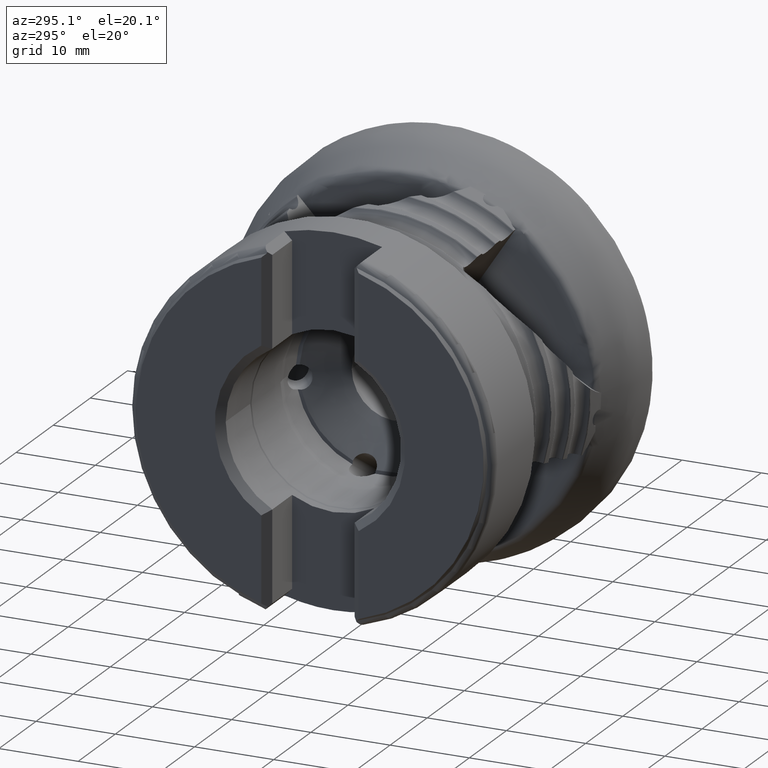
[diagram: clean part render]
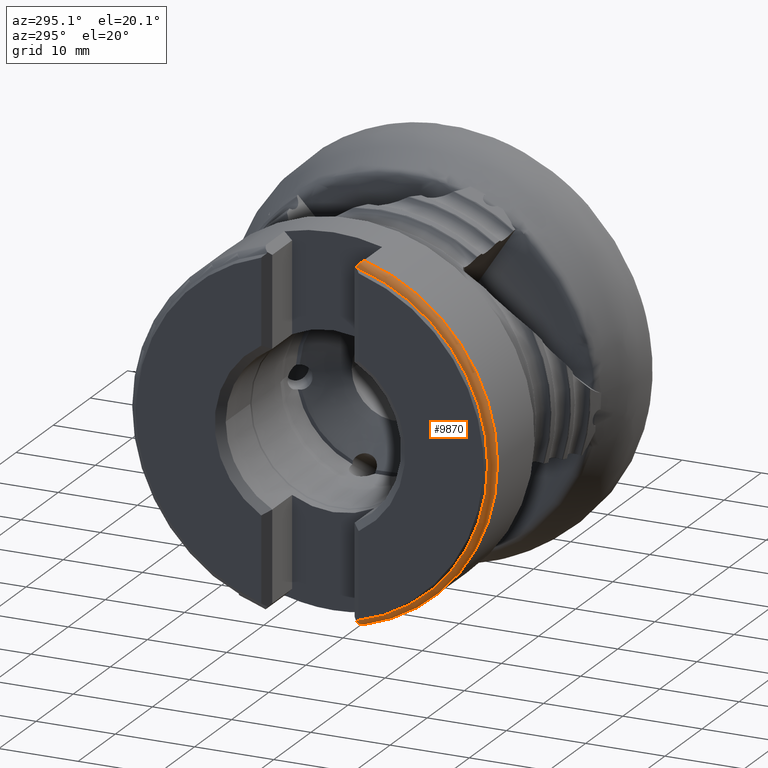
[diagram: same view with one face highlighted and labeled with its STEP entity id]
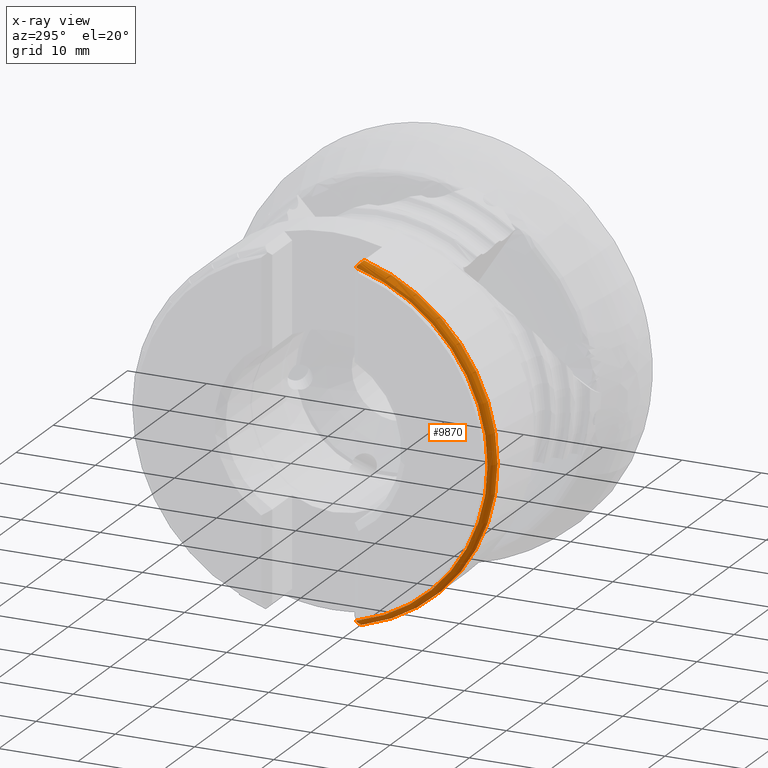
[diagram: x-ray of the same camera — body ghosted, the highlighted face saturated]
A machine part, auxiliary view. The second image highlights one B-rep face of the part: STEP entity #9870.
The next image is the same camera in x-ray: the body ghosted, the highlighted face saturated — about 0% of this face is hidden behind the body in this view.
In plain terms, the highlighted toroidal blend (fillet) surface has major radius 22 mm and minor (blend) radius 1 mm.
Its self-contained STEP definition (entity closure, byte-faithful):
#301 = B_SPLINE_CURVE_WITH_KNOTS ( 'NONE', 3,
 ( #4166, #8471, #9567, #3133 ),
 .UNSPECIFIED., .F., .F.,
 ( 4, 4 ),
 ( 0.0009211484419128416000, 0.001104207427129013900 ),
 .UNSPECIFIED. ) ;
#545 = CARTESIAN_POINT ( 'NONE',  ( -37.66899409298618200, -6.142094694713156500, -22.14643901774246300 ) ) ;
#1049 = ORIENTED_EDGE ( 'NONE', *, *, #2073, .T. ) ;
#1176 = CARTESIAN_POINT ( 'NONE',  ( -38.43402115014630000, -5.678761973106852600, 21.46657139491063000 ) ) ;
#1279 = EDGE_CURVE ( 'NONE', #4947, #4784, #6888, .T. ) ;
#1445 = CARTESIAN_POINT ( 'NONE',  ( -38.35459836637036800, -5.704844070720222100, -21.71020682124892100 ) ) ;
#1587 = CARTESIAN_POINT ( 'NONE',  ( -37.45525917703945900, -6.156428778033644600, -22.16073971466202900 ) ) ;
#1788 = B_SPLINE_CURVE_WITH_KNOTS ( 'NONE', 3,
 ( #4734, #1445, #3684, #12201, #5771, #13238, #6860, #545, #7967, #1587 ),
 .UNSPECIFIED., .F., .F.,
 ( 4, 2, 2, 2, 4 ),
 ( 0.0000000000000000000, 0.0003164729145763503000, 0.0006329458291527005900, 0.0009494187437290508300, 0.001265891658305401200 ),
 .UNSPECIFIED. ) ;
#1978 = EDGE_CURVE ( 'NONE', #4947, #8374, #12658, .T. ) ;
#2073 = EDGE_CURVE ( 'NONE', #2716, #12027, #1788, .T. ) ;
#2275 = DIRECTION ( 'NONE',  ( 1.000000000000000000, -0.0000000000000000000, -0.0000000000000000000 ) ) ;
#2450 = DIRECTION ( 'NONE',  ( 1.000000000000000000, -0.0000000000000000000, -0.0000000000000000000 ) ) ;
#2716 = VERTEX_POINT ( 'NONE', #9715 ) ;
#2814 = CARTESIAN_POINT ( 'NONE',  ( -37.45525917703945900, -6.156428778033639300, 22.16073971466202900 ) ) ;
#2859 = CARTESIAN_POINT ( 'NONE',  ( -37.45525917703945900, -6.156428778033644600, -22.16073971466202900 ) ) ;
#2954 = CARTESIAN_POINT ( 'NONE',  ( -37.87577205521033400, -6.099115118286075400, 22.10355954770779300 ) ) ;
#3133 = CARTESIAN_POINT ( 'NONE',  ( -38.43402115014630000, -5.678761973106852600, -21.46657139491063000 ) ) ;
#3642 = CARTESIAN_POINT ( 'NONE',  ( -38.43402115014630000, -5.678761973106852600, -21.46657139491063000 ) ) ;
#3684 = CARTESIAN_POINT ( 'NONE',  ( -38.30906014108899200, -5.772261426444524400, -21.77746715103613100 ) ) ;
#4044 = CARTESIAN_POINT ( 'NONE',  ( -38.32099110899952200, -5.776438155613816700, 21.78163415192691600 ) ) ;
#4166 = CARTESIAN_POINT ( 'NONE',  ( -38.38830259130141800, -5.633043414261972100, -21.63857340014496700 ) ) ;
#4239 = CARTESIAN_POINT ( 'NONE',  ( -38.42258560689728600, -5.667326429857842700, 21.52607309585506100 ) ) ;
#4258 = CARTESIAN_POINT ( 'NONE',  ( -38.43402115014630000, -5.678761973106852600, 21.46657139491063000 ) ) ;
#4267 = FACE_OUTER_BOUND ( 'NONE', #6660, .T. ) ;
#4416 = CARTESIAN_POINT ( 'NONE',  ( -38.40698632308198800, -5.651727146042543600, 21.58363853381345600 ) ) ;
#4734 = CARTESIAN_POINT ( 'NONE',  ( -38.38830259130141800, -5.633043414261972100, -21.63857340014496700 ) ) ;
#4784 = VERTEX_POINT ( 'NONE', #7155 ) ;
#4933 = CARTESIAN_POINT ( 'NONE',  ( -38.38830259130140400, -5.633043414261956100, 21.63857340014501300 ) ) ;
#4947 = VERTEX_POINT ( 'NONE', #4258 ) ;
#5627 = CARTESIAN_POINT ( 'NONE',  ( -37.45525917703945900, 0.0000000000000000000, 0.0000000000000000000 ) ) ;
#5771 = CARTESIAN_POINT ( 'NONE',  ( -38.12134854283249300, -5.954712698558669400, -21.95949346459643400 ) ) ;
#6660 = EDGE_LOOP ( 'NONE', ( #8734, #9957, #12334, #8554, #11334, #1049 ) ) ;
#6860 = CARTESIAN_POINT ( 'NONE',  ( -37.86600328208859200, -6.089368802331823500, -22.09383593250144500 ) ) ;
#6888 = B_SPLINE_CURVE_WITH_KNOTS ( 'NONE', 3,
 ( #1176, #4239, #4416, #4933 ),
 .UNSPECIFIED., .F., .F.,
 ( 4, 4 ),
 ( 0.001372395222090541900, 0.001555220929415755500 ),
 .UNSPECIFIED. ) ;
#7107 = TOROIDAL_SURFACE ( 'NONE', #13674, 21.99999999999999600, 0.9999999999999974500 ) ;
#7155 = CARTESIAN_POINT ( 'NONE',  ( -38.38830259130140400, -5.633043414261956100, 21.63857340014501300 ) ) ;
#7341 = VERTEX_POINT ( 'NONE', #2814 ) ;
#7815 = DIRECTION ( 'NONE',  ( 0.0000000000000000000, 0.0000000000000000000, -1.000000000000000000 ) ) ;
#7967 = CARTESIAN_POINT ( 'NONE',  ( -37.56259447003169100, -6.156428778033685500, -22.16073971466207100 ) ) ;
#8160 = AXIS2_PLACEMENT_3D ( 'NONE', #8880, #2450, #9964 ) ;
#8374 = VERTEX_POINT ( 'NONE', #3642 ) ;
#8471 = CARTESIAN_POINT ( 'NONE',  ( -38.40723789282815700, -5.651978715788712500, -21.58289885554453100 ) ) ;
#8554 = ORIENTED_EDGE ( 'NONE', *, *, #1978, .T. ) ;
#8703 = CARTESIAN_POINT ( 'NONE',  ( -37.45525917703945900, 0.0000000000000000000, 0.0000000000000000000 ) ) ;
#8734 = ORIENTED_EDGE ( 'NONE', *, *, #13109, .F. ) ;
#8880 = CARTESIAN_POINT ( 'NONE',  ( -38.43402115014630000, 0.0000000000000000000, 0.0000000000000000000 ) ) ;
#9095 = EDGE_CURVE ( 'NONE', #7341, #4784, #10071, .T. ) ;
#9567 = CARTESIAN_POINT ( 'NONE',  ( -38.42266693065072000, -5.667407753611272800, -21.52564995009360500 ) ) ;
#9715 = CARTESIAN_POINT ( 'NONE',  ( -38.38830259130141800, -5.633043414261972100, -21.63857340014496700 ) ) ;
#9792 = DIRECTION ( 'NONE',  ( 0.0000000000000000000, 0.0000000000000000000, -1.000000000000000000 ) ) ;
#9870 = ADVANCED_FACE ( 'Fl�che5', ( #4267 ), #7107, .T. ) ;
#9957 = ORIENTED_EDGE ( 'NONE', *, *, #9095, .T. ) ;
#9964 = DIRECTION ( 'NONE',  ( 0.0000000000000000000, 0.0000000000000000000, -1.000000000000000000 ) ) ;
#10071 = B_SPLINE_CURVE_WITH_KNOTS ( 'NONE', 3,
 ( #12404, #13459, #2954, #10458, #4044, #11510 ),
 .UNSPECIFIED., .F., .F.,
 ( 4, 2, 4 ),
 ( 0.0000000000000000000, 0.0006325674199553104400, 0.001265134839910620900 ),
 .UNSPECIFIED. ) ;
#10458 = CARTESIAN_POINT ( 'NONE',  ( -38.20358823971735500, -5.906484551854031700, 21.91137764905419900 ) ) ;
#11334 = ORIENTED_EDGE ( 'NONE', *, *, #12974, .F. ) ;
#11510 = CARTESIAN_POINT ( 'NONE',  ( -38.38830259130140400, -5.633043414261956100, 21.63857340014501300 ) ) ;
#12027 = VERTEX_POINT ( 'NONE', #2859 ) ;
#12201 = CARTESIAN_POINT ( 'NONE',  ( -38.19236775735284800, -5.897608024376665100, -21.90252179644653900 ) ) ;
#12334 = ORIENTED_EDGE ( 'NONE', *, *, #1279, .F. ) ;
#12404 = CARTESIAN_POINT ( 'NONE',  ( -37.45525917703945900, -6.156428778033639300, 22.16073971466202900 ) ) ;
#12658 = CIRCLE ( 'NONE', #8160, 22.20499999999999500 ) ;
#12974 = EDGE_CURVE ( 'NONE', #2716, #8374, #301, .T. ) ;
#13082 = DIRECTION ( 'NONE',  ( 1.000000000000000000, -0.0000000000000000000, -0.0000000000000000000 ) ) ;
#13109 = EDGE_CURVE ( 'NONE', #7341, #12027, #13412, .T. ) ;
#13238 = CARTESIAN_POINT ( 'NONE',  ( -37.95957258542800600, -6.049968864018091500, -22.05452776302337600 ) ) ;
#13412 = CIRCLE ( 'NONE', #13439, 22.99999999999999300 ) ;
#13439 = AXIS2_PLACEMENT_3D ( 'NONE', #8703, #2275, #9792 ) ;
#13459 = CARTESIAN_POINT ( 'NONE',  ( -37.66935102199801100, -6.156428778033640200, 22.16073971466202500 ) ) ;
#13674 = AXIS2_PLACEMENT_3D ( 'NONE', #5627, #13082, #7815 ) ;